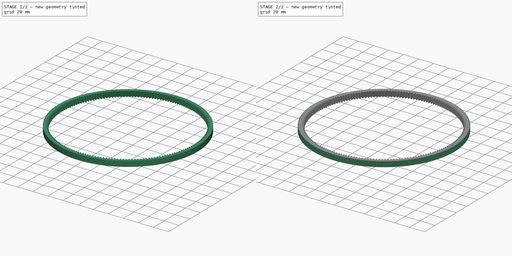
[diagram: build sequence overview — one tinted view per stage of 2, left to right]
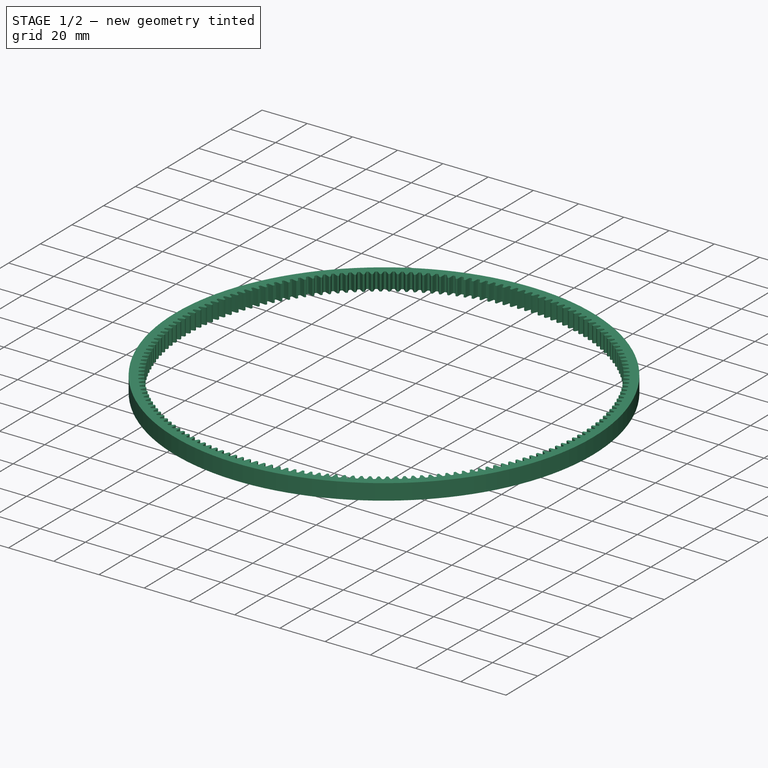
[diagram: stage 1 of 2 — iso view after this stage's code; geometry added in this stage tinted green]
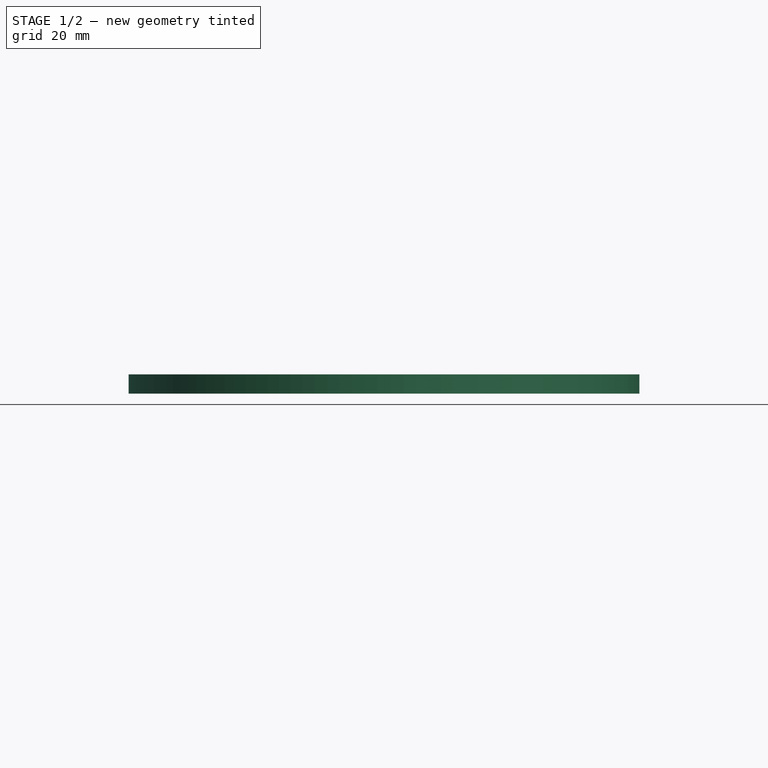
[diagram: stage 1 of 2 — front view after this stage's code; geometry added in this stage tinted green]
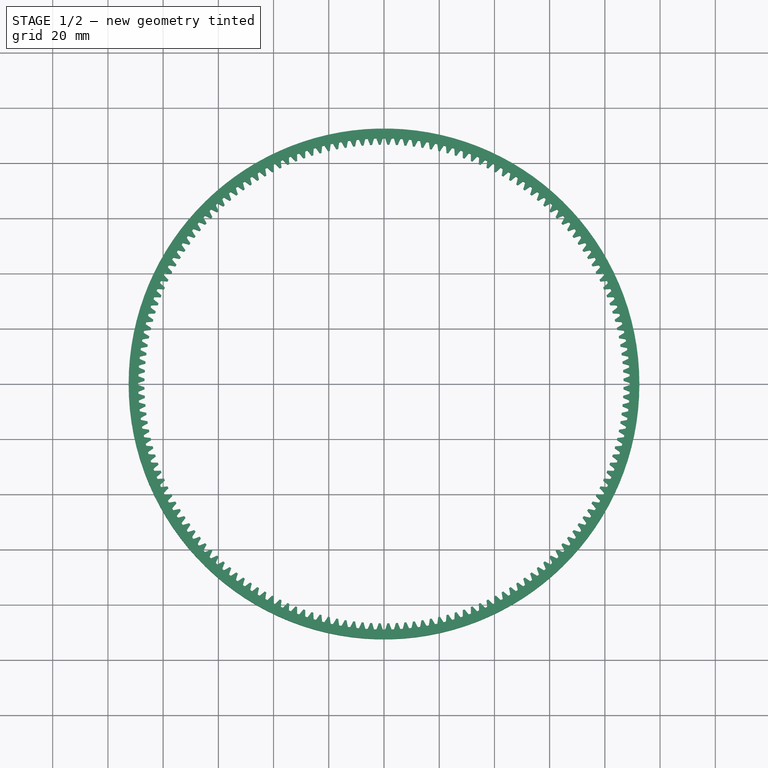
[diagram: stage 1 of 2 — top view after this stage's code; geometry added in this stage tinted green]
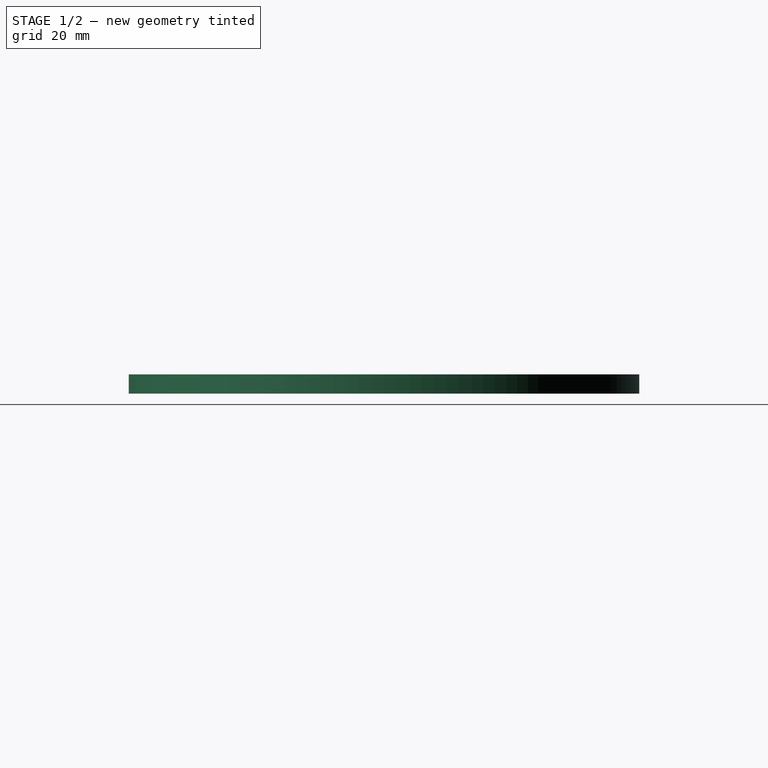
[diagram: stage 1 of 2 — right view after this stage's code; geometry added in this stage tinted green]
FCSTD DOCUMENT  (FreeCAD 0.19R24276 (Git))
Label: Out_gear_t176_w7_cat_d185_GT2_t295_A2_temp
License: All rights reserved
LicenseURL: http://en.wikipedia.org/wiki/All_rights_reserved
objects: App::FeaturePython×4, Part::FeaturePython×2, Sketcher::SketchObject×1, PartDesign::FeatureBase×1, PartDesign::Pocket×1, PartDesign::Body×1
note: 7 computed .brp shape members not serialized (recipe doc carries the construction recipe); baked Part::Feature solids carry a one-line shape summary decoded from their .brp

FEATURE [Part::FeaturePython] b_In_gear_t176_w7_cat_d185_001_  label="In_gear_t176_w7_cat_d185_001"  # a2plus imported part (geometry in sourceFile) (typed FeaturePython)
  a2p_Version = V0.1
  fixedPosition = true
  objectType = a2pPart
  sourceFile = .\In_gear_t176_w7_cat_d185.FCStd
  subassemblyImport = false
  timeLastImport = 1.6473e+09
  updateColors = true
FEATURE [App::FeaturePython] planeCoincident_001  label="planeCoincident_001__GT2_t295_001"  # a2plus constraint (typed FeaturePython)
  Object1 = b_In_gear_t176_w7_cat_d185_001_
  Object2 = b_GT2_t295_001_
  ParentTreeObject = -> b_In_gear_t176_w7_cat_d185_001_
  SubElement1 = Face2
  SubElement2 = Face5
  Suppressed = false
  Type = plane
  directionConstraint = 0
  offset = 0
FEATURE [App::FeaturePython] planeCoincident_001_mirror  label="planeCoincident_001__In_gear_t176_w7_cat_d185_001"  # a2plus constraint (typed FeaturePython)
  Object1 = b_In_gear_t176_w7_cat_d185_001_
  Object2 = b_GT2_t295_001_
  ParentTreeObject = -> b_GT2_t295_001_
  SubElement1 = Face2
  SubElement2 = Face5
  Suppressed = false
  Type = plane
  directionConstraint = 0
  offset = 0
FEATURE [App::FeaturePython] axisCoincident_001  label="axisCoincident_001__In_gear_t176_w7_cat_d185_001"  # a2plus constraint (typed FeaturePython)
  Object1 = b_GT2_t295_001_
  Object2 = b_In_gear_t176_w7_cat_d185_001_
  ParentTreeObject = -> b_GT2_t295_001_
  SubElement1 = Face1773
  SubElement2 = Face1
  Suppressed = false
  Type = axial
  directionConstraint = 1
  lockRotation = false
FEATURE [App::FeaturePython] axisCoincident_001_mirror  label="axisCoincident_001__GT2_t295_001"  # a2plus constraint (typed FeaturePython)
  Object1 = b_GT2_t295_001_
  Object2 = b_In_gear_t176_w7_cat_d185_001_
  ParentTreeObject = -> b_In_gear_t176_w7_cat_d185_001_
  SubElement1 = Face1773
  SubElement2 = Face1
  Suppressed = false
  Type = axial
  directionConstraint = 1
  lockRotation = false
FEATURE [Sketcher::SketchObject] Sketch
  FullyConstrained = true
  MapMode = 5
  Support = -> [XY_Plane]
  sketch-geometry (3):
    g0: Circle CenterX=0 CenterY=0 CenterZ=0 NormalX=0 NormalY=0 NormalZ=1 AngleXU=0 Radius=91
    g1: LineSegment StartX=0 StartY=0 StartZ=0 EndX=91 EndY=0 EndZ=0
    g2: Circle CenterX=91 CenterY=0 CenterZ=0 NormalX=0 NormalY=0 NormalZ=1 AngleXU=0 Radius=1.1
  constraints (7):
    c: Coincident(g0,g-1)
    c: Radius(g0) = 91
    c: Coincident(g1,g0)
    c: Horizontal(g1)
    c: PointOnObject(g1,g0)
    c: Coincident(g2,g1)
    c: Diameter(g2) = 2.2
FEATURE [PartDesign::FeatureBase] BaseFeature
  BaseFeature = -> b_In_gear_t176_w7_cat_d185_001_
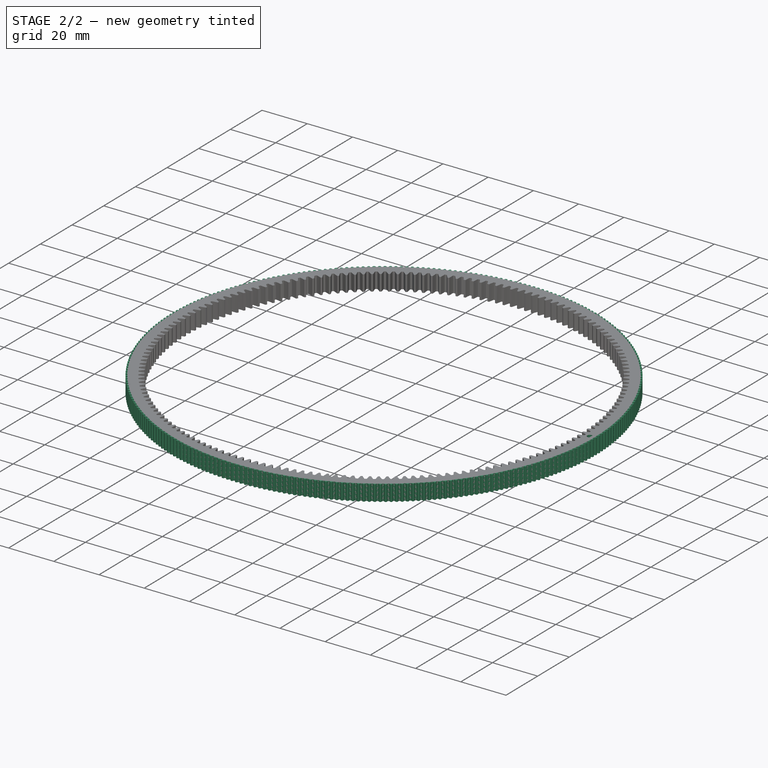
[diagram: stage 2 of 2 — iso view after this stage's code; geometry added in this stage tinted green]
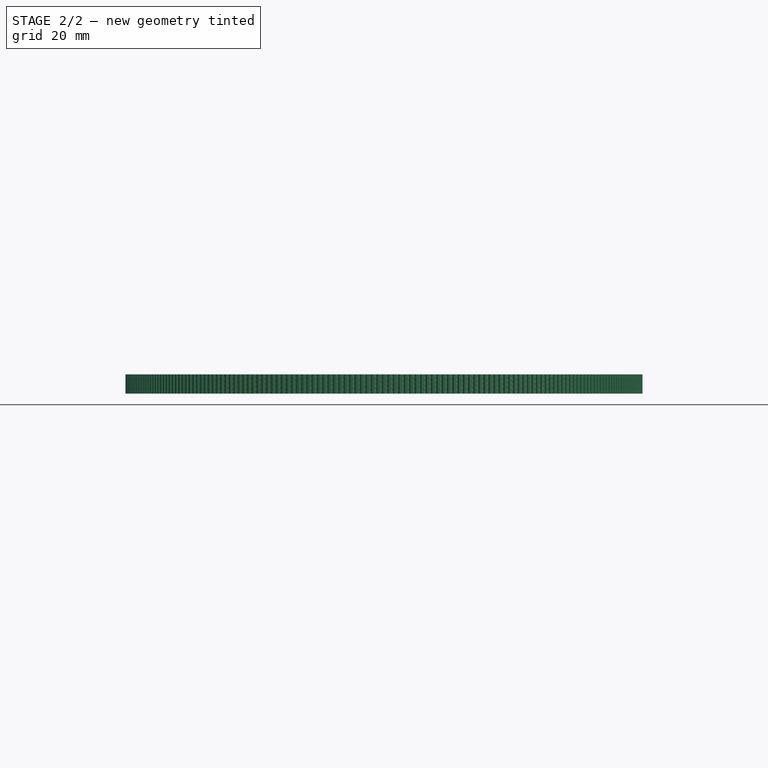
[diagram: stage 2 of 2 — front view after this stage's code; geometry added in this stage tinted green]
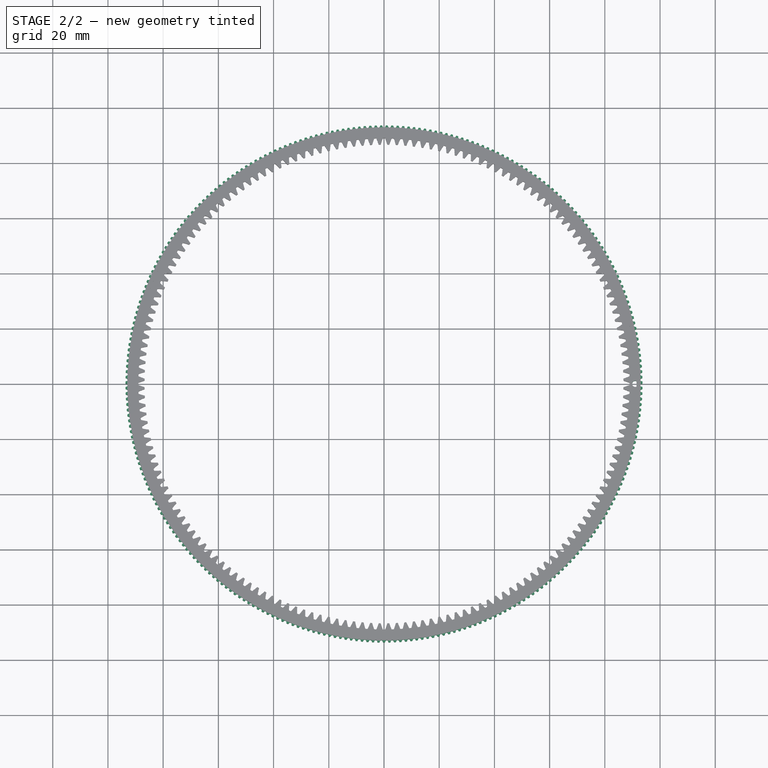
[diagram: stage 2 of 2 — top view after this stage's code; geometry added in this stage tinted green]
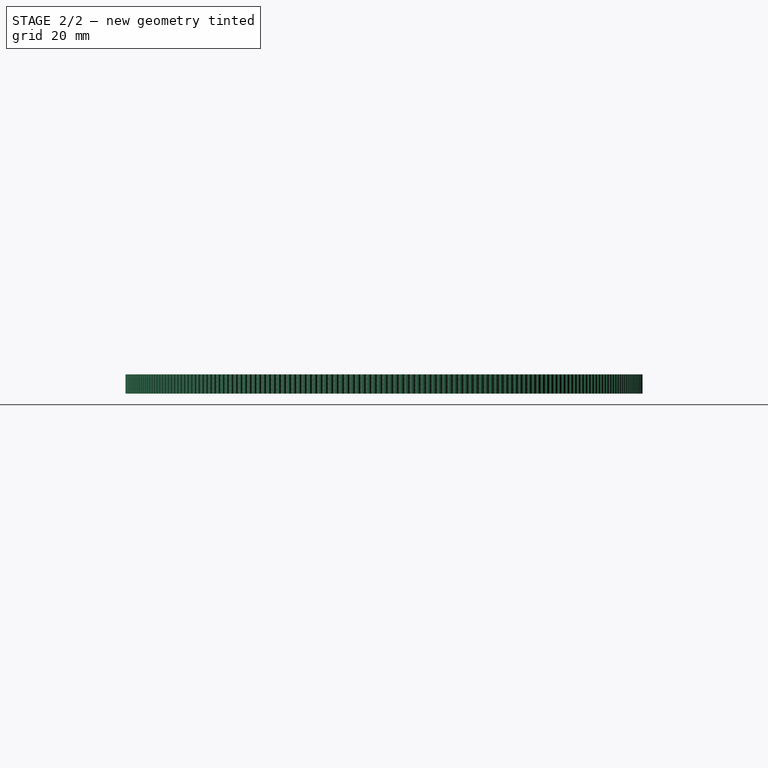
[diagram: stage 2 of 2 — right view after this stage's code; geometry added in this stage tinted green]
FEATURE [Part::FeaturePython] b_GT2_t295_001_  label="GT2_t295_001"  # a2plus imported part (geometry in sourceFile) (typed FeaturePython)
  Placement = pos=(-6.43163e-06,-4.63178e-07,-5.66e-13) rot=(0,0,1;0rad)
  a2p_Version = V0.1
  fixedPosition = false
  objectType = a2pPart
  sourceFile = .\GT2_t295.FCStd
  subassemblyImport = false
  timeLastImport = 1.6473e+09
  updateColors = true
FEATURE [PartDesign::Pocket] Pocket
  BaseFeature = -> BaseFeature
  Length = 5
  Length2 = 100
  Profile = -> Sketch
  Reversed = true
  Type = 1
FEATURE [PartDesign::Body] Body
  BaseFeature = -> b_In_gear_t176_w7_cat_d185_001_
  Group = -> [BaseFeature,Sketch,Pocket]
  Origin = -> Origin
  Tip = -> Pocket
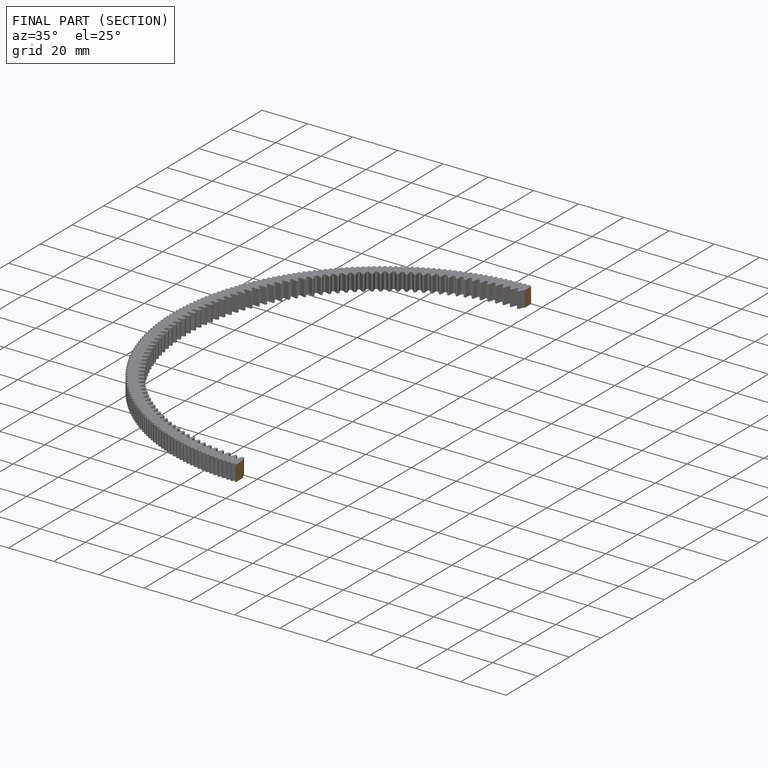
[diagram: finished part — half-section view (interior)]
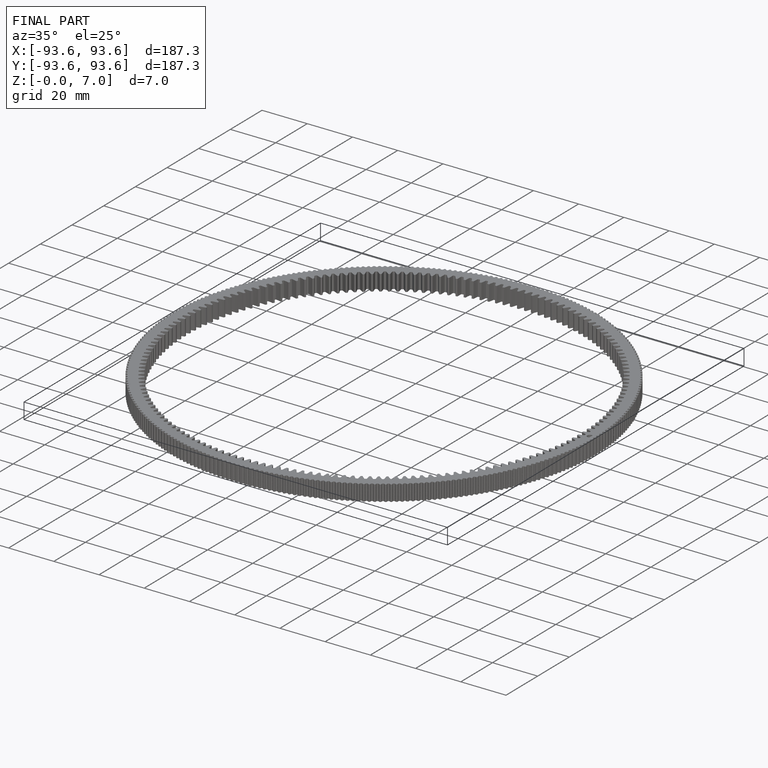
[diagram: finished part — iso view with bounding-box wireframe]
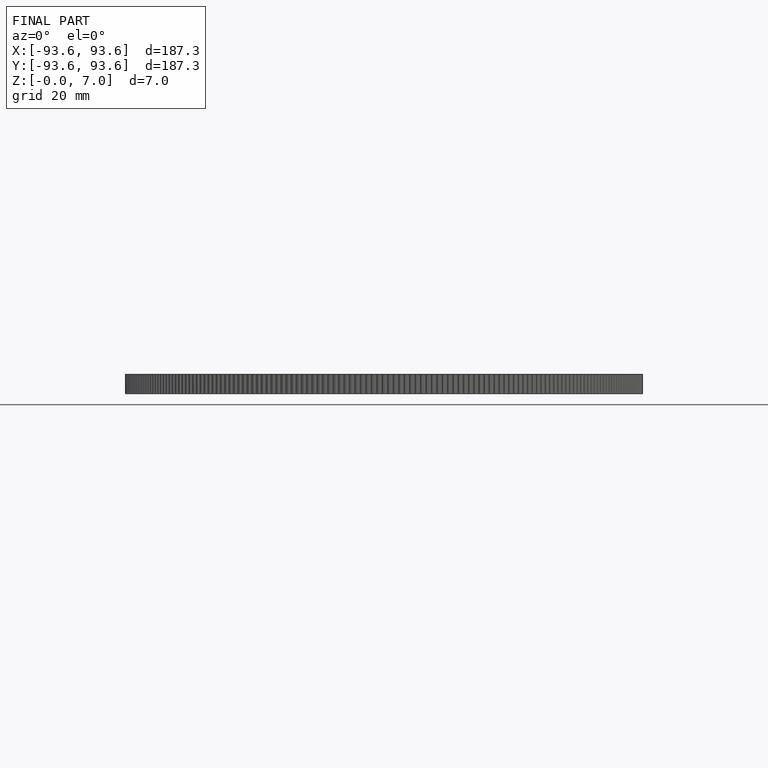
[diagram: finished part — front view with bounding-box wireframe]
